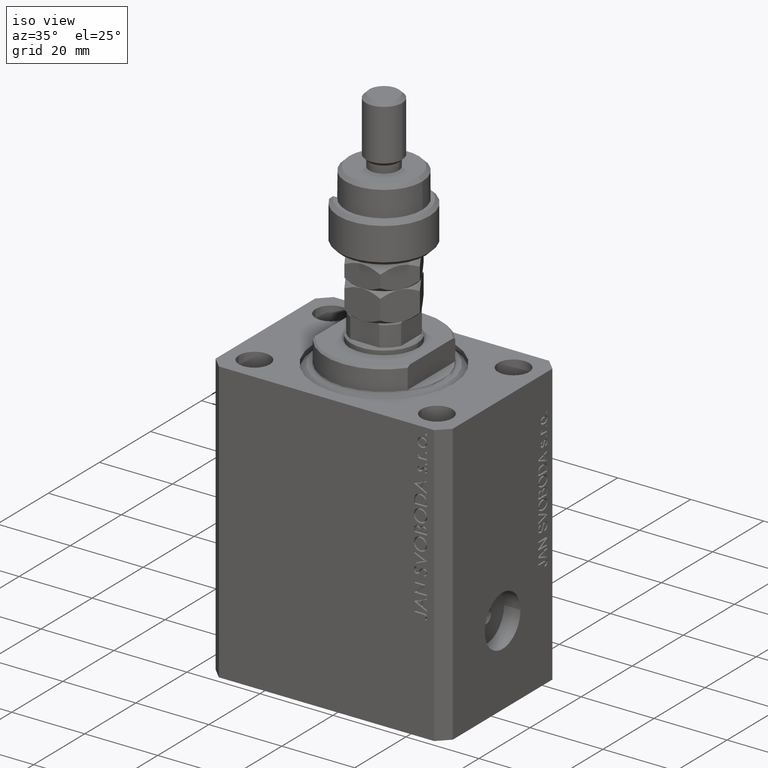
[diagram: clean part render]
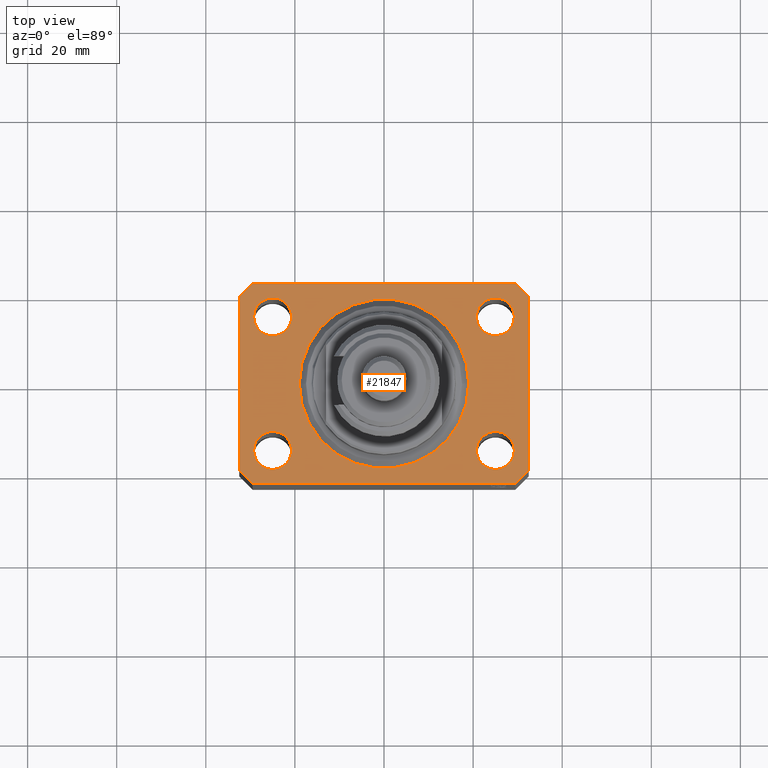
[diagram: tour spotlight — one face highlighted and labeled with its STEP entity id]
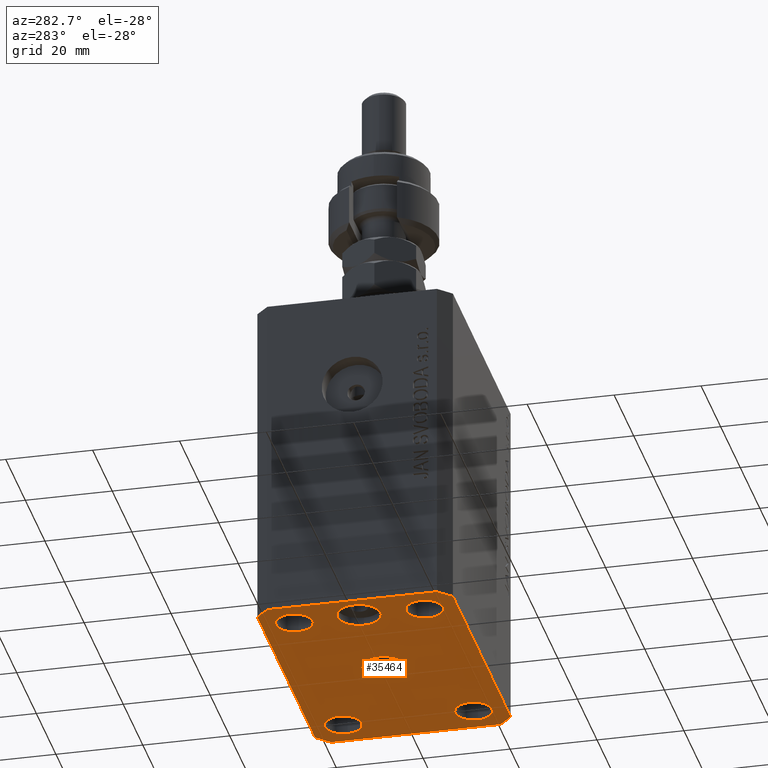
[diagram: tour spotlight — one face highlighted and labeled with its STEP entity id]
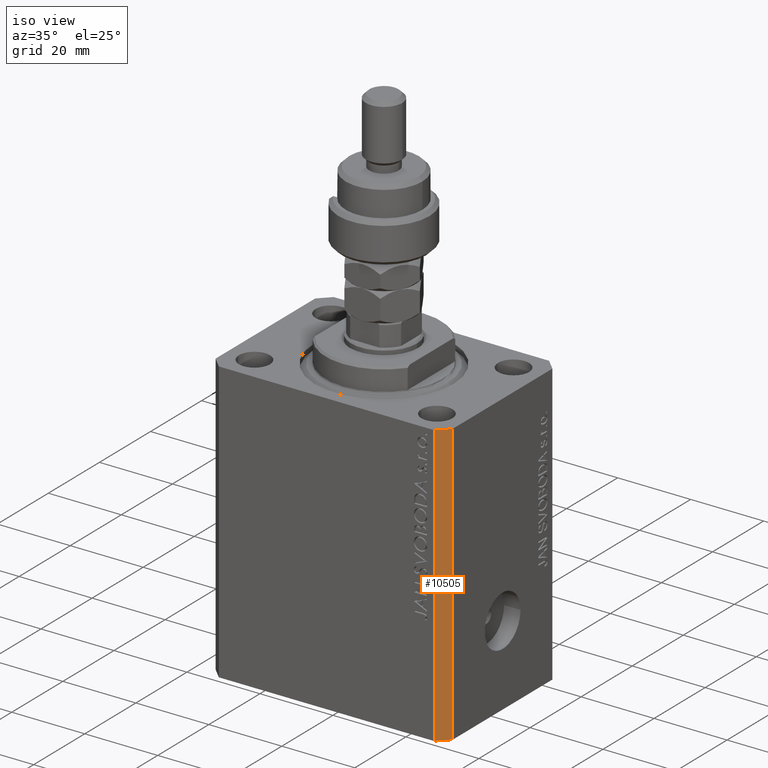
[diagram: tour spotlight — one face highlighted and labeled with its STEP entity id]
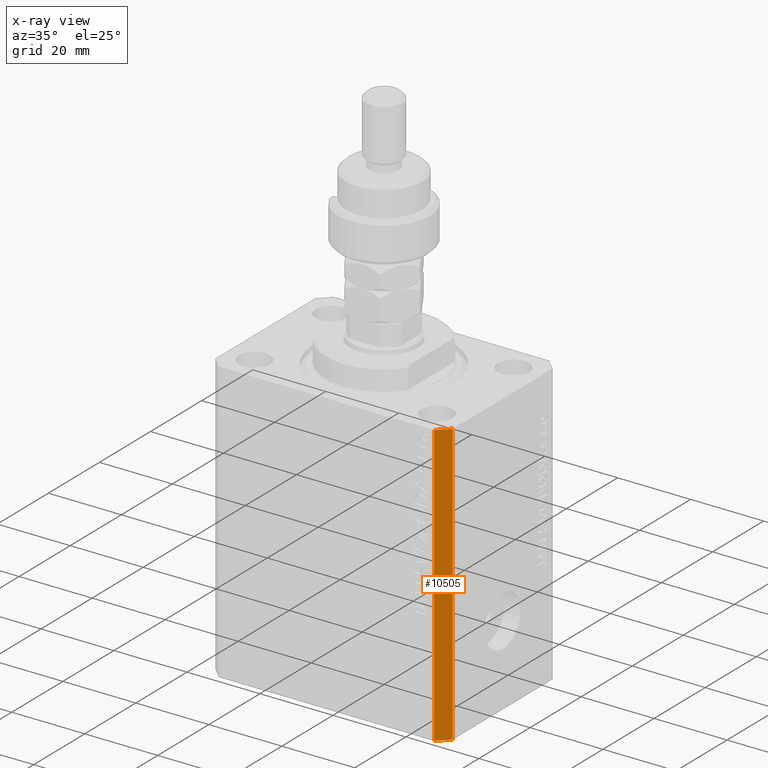
[diagram: x-ray of the same camera — body ghosted, this tour face saturated]
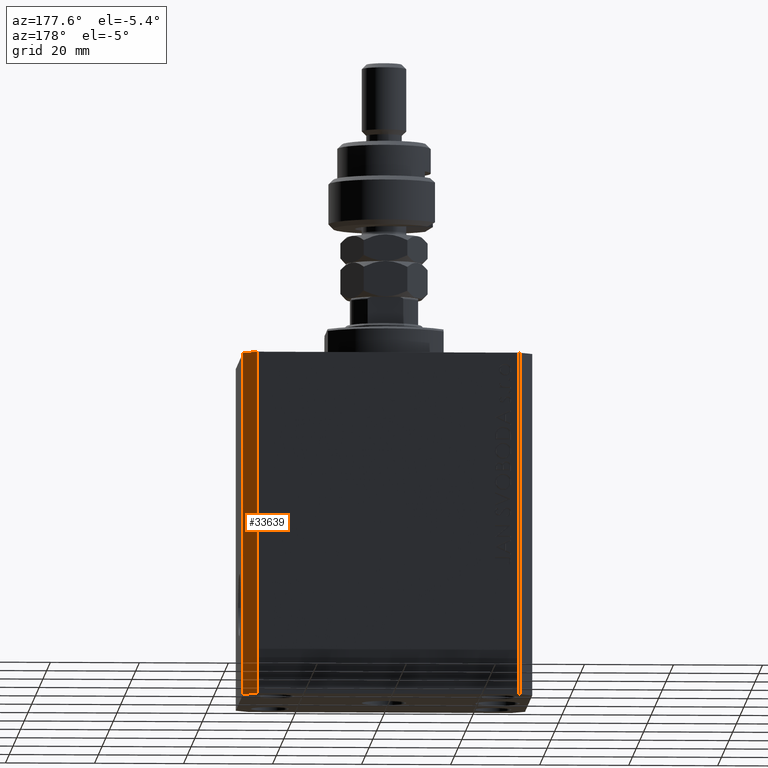
[diagram: tour spotlight — one face highlighted and labeled with its STEP entity id]
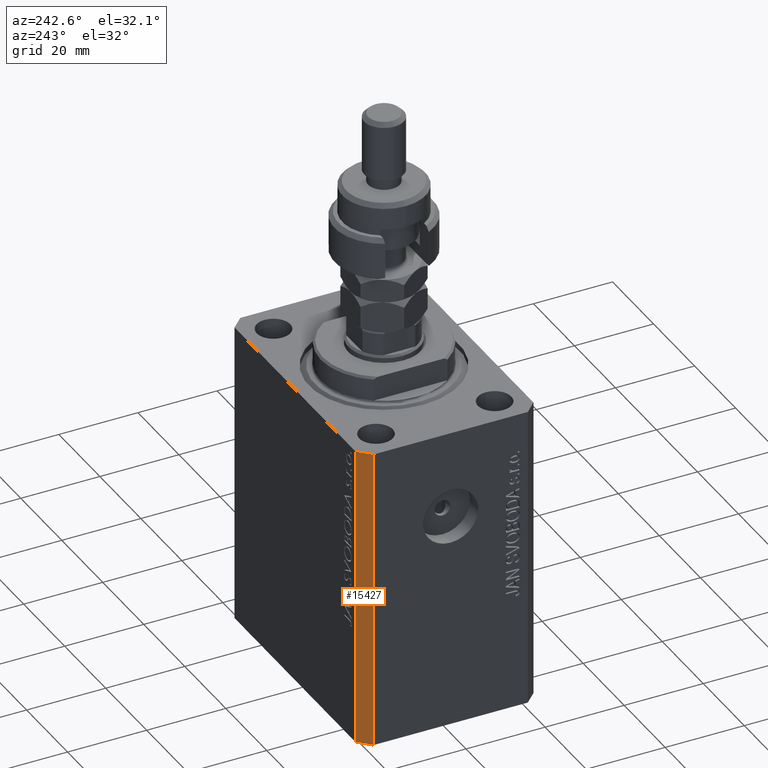
[diagram: tour spotlight — one face highlighted and labeled with its STEP entity id]
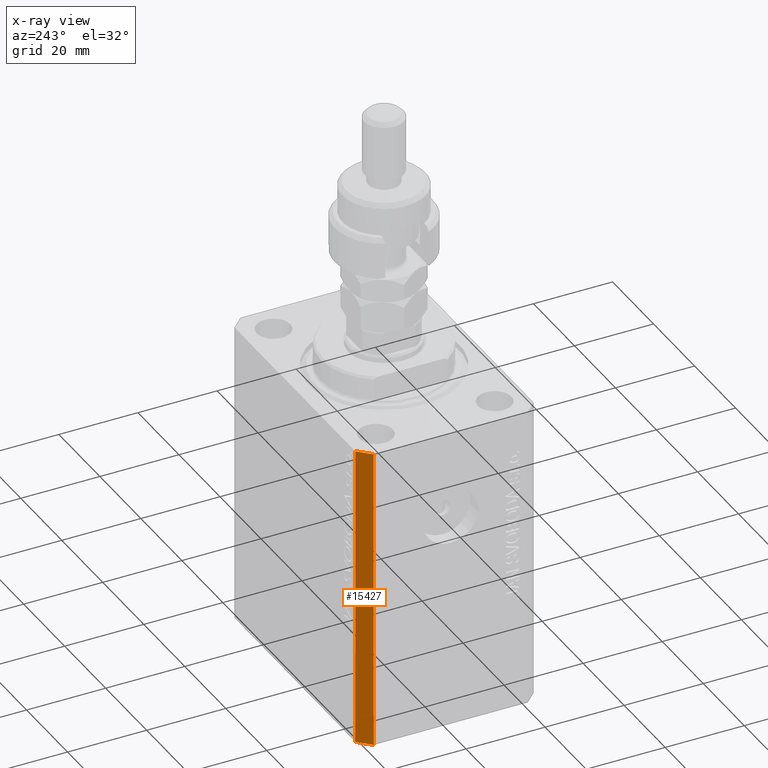
[diagram: x-ray of the same camera — body ghosted, this tour face saturated]
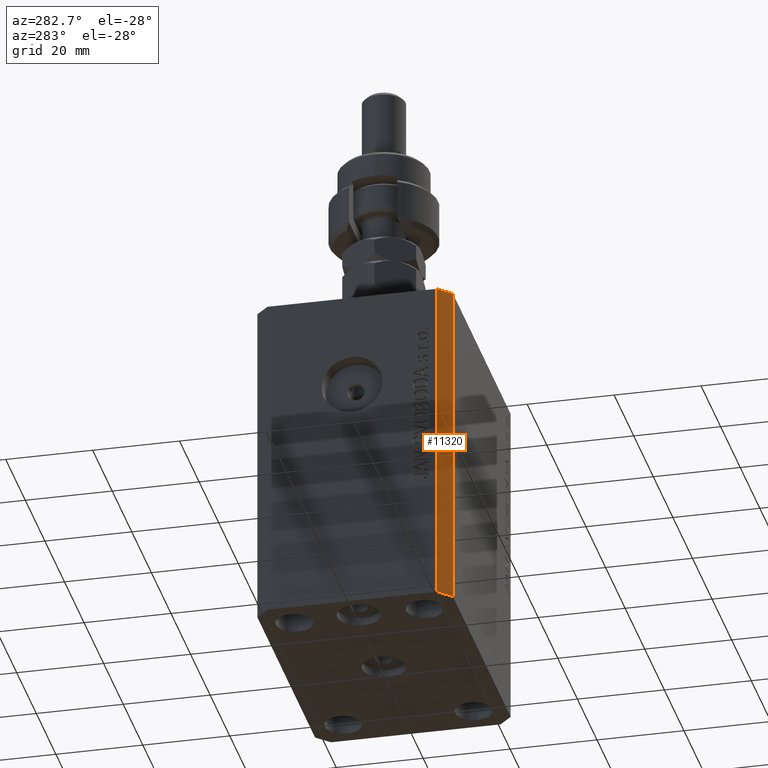
[diagram: tour spotlight — one face highlighted and labeled with its STEP entity id]
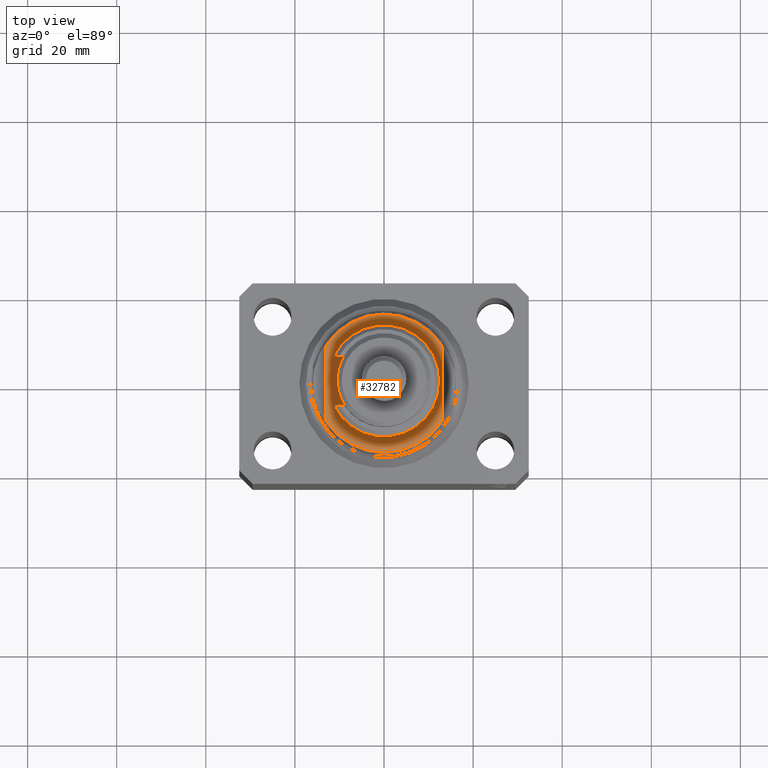
[diagram: tour spotlight — one face highlighted and labeled with its STEP entity id]
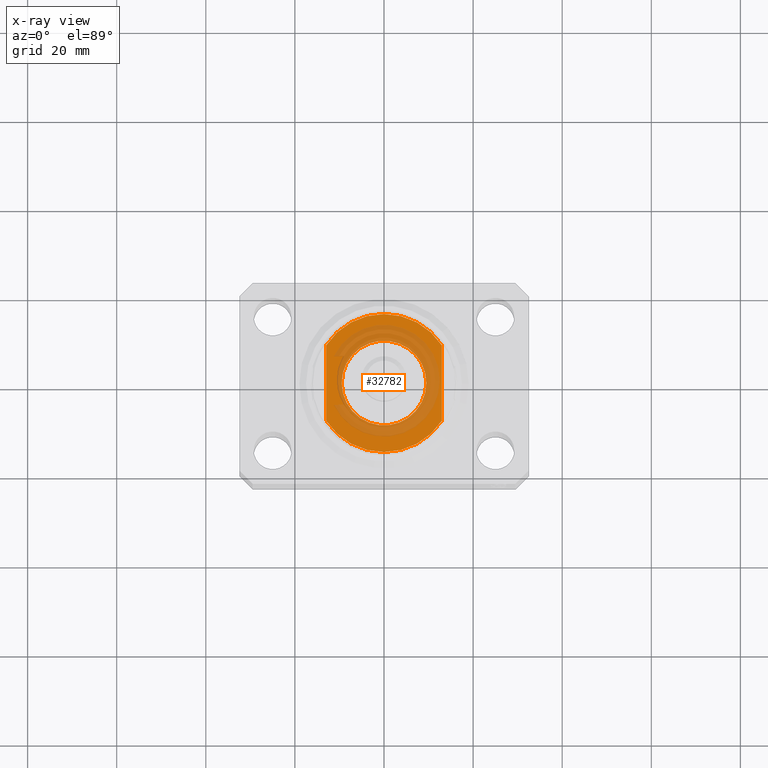
[diagram: x-ray of the same camera — body ghosted, this tour face saturated]
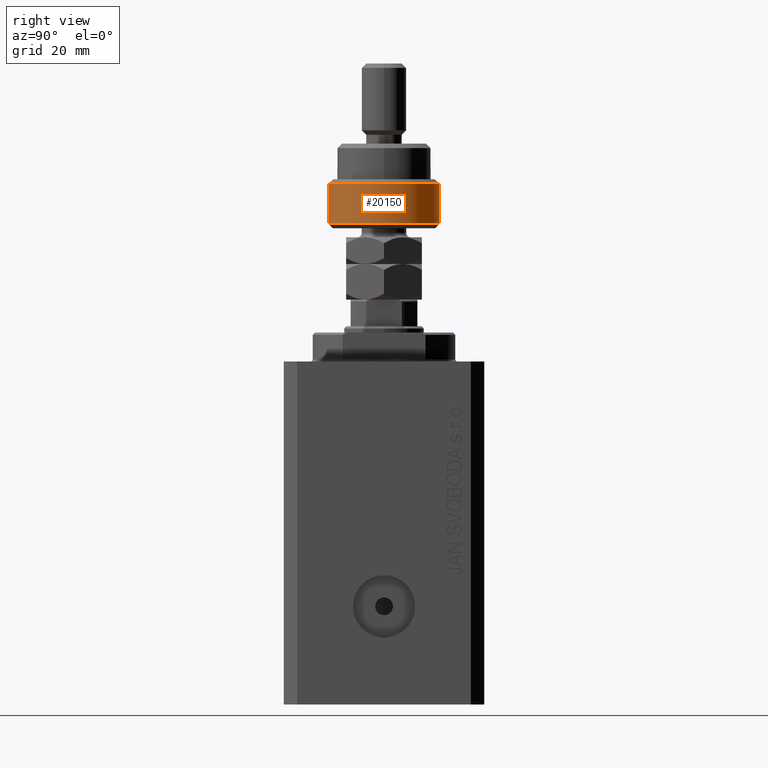
[diagram: tour spotlight — one face highlighted and labeled with its STEP entity id]
A machine part: a face-by-face anatomy tour. The part has 957 B-rep faces; the first image is the clean iso view, then the 8 largest visible faces are spotlighted one at a time (largest first), each with its STEP entity span.

Face 1 — top view, entity #21847. In plain terms, the highlighted planar face has unit normal (0, 0, 1).
Definition (entity closure, byte-faithful):
#110 = DIRECTION ( 'NONE',  ( 0.000000000000000000, 0.000000000000000000, 1.000000000000000000 ) ) ;
#600 = CARTESIAN_POINT ( 'NONE',  ( -24.99999999999999289, -15.00000000000000355, 0.000000000000000000 ) ) ;
#806 = CARTESIAN_POINT ( 'NONE',  ( 19.00000000000000000, 0.000000000000000000, 0.000000000000000000 ) ) ;
#822 = CARTESIAN_POINT ( 'NONE',  ( -29.49999999999650413, -22.49999999999949907, 0.000000000000000000 ) ) ;
#1259 = ORIENTED_EDGE ( 'NONE', *, *, #39170, .F. ) ;
#1376 = EDGE_CURVE ( 'NONE', #36806, #43090, #2805, .T. ) ;
#1683 = CARTESIAN_POINT ( 'NONE',  ( -24.99999999999999289, -15.00000000000000355, 0.000000000000000000 ) ) ;
#1937 = VERTEX_POINT ( 'NONE', #40263 ) ;
#2790 = EDGE_CURVE ( 'NONE', #1937, #25094, #7047, .T. ) ;
#2805 = LINE ( 'NONE', #6414, #12857 ) ;
#2811 = CARTESIAN_POINT ( 'NONE',  ( -19.00000000000000000, 2.326828918379970970E-15, 0.000000000000000000 ) ) ;
#3057 = CIRCLE ( 'NONE', #31469, 4.250000000040370374 ) ;
#3074 = LINE ( 'NONE', #42954, #4219 ) ;
#3105 = CARTESIAN_POINT ( 'NONE',  ( 29.49999999999650413, -22.49999999999949196, 0.000000000000000000 ) ) ;
#3336 = AXIS2_PLACEMENT_3D ( 'NONE', #17328, #21641, #25247 ) ;
#3455 = ORIENTED_EDGE ( 'NONE', *, *, #42697, .F. ) ;
#4219 = VECTOR ( 'NONE', #24728, 1000.000000000000000 ) ;
#4383 = CARTESIAN_POINT ( 'NONE',  ( 20.75000000004271072, 14.99999999999999289, 0.000000000000000000 ) ) ;
#4765 = CIRCLE ( 'NONE', #31640, 19.00000000000000000 ) ;
#5170 = EDGE_CURVE ( 'NONE', #28825, #44074, #6717, .T. ) ;
#6203 = FACE_BOUND ( 'NONE', #25554, .T. ) ;
#6325 = LINE ( 'NONE', #12419, #7259 ) ;
#6414 = CARTESIAN_POINT ( 'NONE',  ( -29.49999999999650413, 22.49999999999949907, 0.000000000000000000 ) ) ;
#6717 = LINE ( 'NONE', #3105, #46993 ) ;
#7047 = CIRCLE ( 'NONE', #14721, 4.250000000021375790 ) ;
#7103 = DIRECTION ( 'NONE',  ( 1.000000000000000000, 0.000000000000000000, 0.000000000000000000 ) ) ;
#7117 = VERTEX_POINT ( 'NONE', #20446 ) ;
#7147 = FACE_BOUND ( 'NONE', #35720, .T. ) ;
#7198 = EDGE_CURVE ( 'NONE', #12489, #37787, #14071, .T. ) ;
#7249 = AXIS2_PLACEMENT_3D ( 'NONE', #22758, #8095, #23001 ) ;
#7259 = VECTOR ( 'NONE', #13294, 1000.000000000000000 ) ;
#8095 = DIRECTION ( 'NONE',  ( 0.000000000000000000, 0.000000000000000000, 1.000000000000000000 ) ) ;
#8680 = DIRECTION ( 'NONE',  ( -1.000000000000000000, -3.528251137580330676E-16, 0.000000000000000000 ) ) ;
#8756 = LINE ( 'NONE', #822, #23404 ) ;
#8855 = VERTEX_POINT ( 'NONE', #32902 ) ;
#9298 = EDGE_CURVE ( 'NONE', #7117, #45449, #38685, .T. ) ;
#10199 = ORIENTED_EDGE ( 'NONE', *, *, #9298, .F. ) ;
#10665 = ORIENTED_EDGE ( 'NONE', *, *, #18355, .T. ) ;
#10708 = CARTESIAN_POINT ( 'NONE',  ( 0.000000000000000000, 0.000000000000000000, 0.000000000000000000 ) ) ;
#10754 = DIRECTION ( 'NONE',  ( 1.000000000000000000, 0.000000000000000000, -0.000000000000000000 ) ) ;
#11003 = EDGE_CURVE ( 'NONE', #44074, #24312, #3074, .T. ) ;
#11173 = AXIS2_PLACEMENT_3D ( 'NONE', #35978, #28554, #10754 ) ;
#11332 = DIRECTION ( 'NONE',  ( 0.000000000000000000, 0.000000000000000000, 1.000000000000000000 ) ) ;
#11565 = DIRECTION ( 'NONE',  ( 1.000000000000000000, 0.000000000000000000, 0.000000000000000000 ) ) ;
#11962 = EDGE_CURVE ( 'NONE', #24312, #40547, #30045, .T. ) ;
#12149 = EDGE_CURVE ( 'NONE', #8855, #27911, #21823, .T. ) ;
#12419 = CARTESIAN_POINT ( 'NONE',  ( -32.49999999999650413, 19.49999999999949907, 0.000000000000000000 ) ) ;
#12489 = VERTEX_POINT ( 'NONE', #4383 ) ;
#12857 = VECTOR ( 'NONE', #14563, 1000.000000000000114 ) ;
#13294 = DIRECTION ( 'NONE',  ( 0.000000000000000000, -1.000000000000000000, 0.000000000000000000 ) ) ;
#14071 = CIRCLE ( 'NONE', #3336, 4.249999999957291053 ) ;
#14113 = FACE_OUTER_BOUND ( 'NONE', #29534, .T. ) ;
#14508 = ORIENTED_EDGE ( 'NONE', *, *, #36951, .T. ) ;
#14558 = EDGE_CURVE ( 'NONE', #23502, #20947, #32468, .T. ) ;
#14563 = DIRECTION ( 'NONE',  ( -0.7071067811865474617, -0.7071067811865474617, 0.000000000000000000 ) ) ;
#14721 = AXIS2_PLACEMENT_3D ( 'NONE', #35587, #35351, #17102 ) ;
#14776 = DIRECTION ( 'NONE',  ( 1.000000000000000000, 0.000000000000000000, 0.000000000000000000 ) ) ;
#15205 = AXIS2_PLACEMENT_3D ( 'NONE', #28897, #11332, #11565 ) ;
#15264 = DIRECTION ( 'NONE',  ( 1.000000000000000000, 0.000000000000000000, 0.000000000000000000 ) ) ;
#15495 = CARTESIAN_POINT ( 'NONE',  ( 25.00000000000000000, 14.99999999999999289, 0.000000000000000000 ) ) ;
#17102 = DIRECTION ( 'NONE',  ( 1.000000000000000000, 0.000000000000000000, 0.000000000000000000 ) ) ;
#17328 = CARTESIAN_POINT ( 'NONE',  ( 25.00000000000000000, 14.99999999999999289, 0.000000000000000000 ) ) ;
#17480 = DIRECTION ( 'NONE',  ( 1.000000000000000000, 0.000000000000000000, 0.000000000000000000 ) ) ;
#17526 = ORIENTED_EDGE ( 'NONE', *, *, #43688, .F. ) ;
#17773 = DIRECTION ( 'NONE',  ( 0.7071067811865483499, 0.7071067811865466846, 0.000000000000000000 ) ) ;
#18355 = EDGE_CURVE ( 'NONE', #43090, #23502, #6325, .T. ) ;
#19236 = EDGE_CURVE ( 'NONE', #20947, #28825, #8756, .T. ) ;
#19656 = CARTESIAN_POINT ( 'NONE',  ( -29.49999999999650413, -22.49999999999949907, 0.000000000000000000 ) ) ;
#19734 = LINE ( 'NONE', #41345, #36795 ) ;
#19737 = CARTESIAN_POINT ( 'NONE',  ( 29.49999999999650413, -22.49999999999949196, 0.000000000000000000 ) ) ;
#19812 = DIRECTION ( 'NONE',  ( 1.000000000000000000, 1.176083712526788232E-16, 0.000000000000000000 ) ) ;
#20446 = CARTESIAN_POINT ( 'NONE',  ( 29.24999999997631051, -15.00000000000000355, 0.000000000000000000 ) ) ;
#20715 = CARTESIAN_POINT ( 'NONE',  ( 0.000000000000000000, 0.000000000000000000, 0.000000000000000000 ) ) ;
#20843 = EDGE_LOOP ( 'NONE', ( #3455, #45012 ) ) ;
#20883 = ORIENTED_EDGE ( 'NONE', *, *, #11962, .T. ) ;
#20947 = VERTEX_POINT ( 'NONE', #19656 ) ;
#21254 = EDGE_CURVE ( 'NONE', #46845, #40782, #21915, .T. ) ;
#21589 = ORIENTED_EDGE ( 'NONE', *, *, #19236, .T. ) ;
#21641 = DIRECTION ( 'NONE',  ( 0.000000000000000000, 0.000000000000000000, 1.000000000000000000 ) ) ;
#21823 = CIRCLE ( 'NONE', #44816, 4.250000000040370374 ) ;
#21847 = ADVANCED_FACE ( 'NONE', ( #46552, #6203, #46785, #47255, #7147, #14113 ), #29026, .T. ) ;
#21906 = CARTESIAN_POINT ( 'NONE',  ( -32.49999999999650413, -19.49999999999949907, 0.000000000000000000 ) ) ;
#21915 = CIRCLE ( 'NONE', #32644, 19.00000000000000000 ) ;
#22758 = CARTESIAN_POINT ( 'NONE',  ( 24.99999999999999289, -15.00000000000000355, 0.000000000000000000 ) ) ;
#23001 = DIRECTION ( 'NONE',  ( 1.000000000000000000, 0.000000000000000000, 0.000000000000000000 ) ) ;
#23371 = VECTOR ( 'NONE', #29354, 1000.000000000000114 ) ;
#23404 = VECTOR ( 'NONE', #19812, 1000.000000000000000 ) ;
#23502 = VERTEX_POINT ( 'NONE', #25729 ) ;
#23998 = CIRCLE ( 'NONE', #28599, 4.250000000021375790 ) ;
#24153 = ORIENTED_EDGE ( 'NONE', *, *, #36250, .F. ) ;
#24312 = VERTEX_POINT ( 'NONE', #41700 ) ;
#24568 = DIRECTION ( 'NONE',  ( 0.000000000000000000, 0.000000000000000000, 1.000000000000000000 ) ) ;
#24728 = DIRECTION ( 'NONE',  ( 1.334402673828349134E-14, 1.000000000000000000, 0.000000000000000000 ) ) ;
#24771 = EDGE_LOOP ( 'NONE', ( #10199, #33393 ) ) ;
#25094 = VERTEX_POINT ( 'NONE', #25186 ) ;
#25186 = CARTESIAN_POINT ( 'NONE',  ( -29.25000000002137668, 14.99999999999999645, 0.000000000000000000 ) ) ;
#25247 = DIRECTION ( 'NONE',  ( 1.000000000000000000, 0.000000000000000000, 0.000000000000000000 ) ) ;
#25554 = EDGE_LOOP ( 'NONE', ( #24153, #47432 ) ) ;
#25729 = CARTESIAN_POINT ( 'NONE',  ( -32.49999999999650413, -19.49999999999949907, 0.000000000000000000 ) ) ;
#27911 = VERTEX_POINT ( 'NONE', #41103 ) ;
#28554 = DIRECTION ( 'NONE',  ( 0.000000000000000000, 0.000000000000000000, 1.000000000000000000 ) ) ;
#28599 = AXIS2_PLACEMENT_3D ( 'NONE', #46301, #42693, #17480 ) ;
#28825 = VERTEX_POINT ( 'NONE', #19737 ) ;
#28897 = CARTESIAN_POINT ( 'NONE',  ( 24.99999999999999289, -15.00000000000000355, 0.000000000000000000 ) ) ;
#29026 = PLANE ( 'NONE',  #11173 ) ;
#29354 = DIRECTION ( 'NONE',  ( 0.7071067811865474617, -0.7071067811865474617, 0.000000000000000000 ) ) ;
#29534 = EDGE_LOOP ( 'NONE', ( #14508, #31276, #10665, #34813, #21589, #36761, #45860, #20883 ) ) ;
#30045 = LINE ( 'NONE', #33876, #46359 ) ;
#30202 = CARTESIAN_POINT ( 'NONE',  ( 29.49999999999707967, 22.49999999999952038, 0.000000000000000000 ) ) ;
#30244 = EDGE_LOOP ( 'NONE', ( #1259, #46008 ) ) ;
#31276 = ORIENTED_EDGE ( 'NONE', *, *, #1376, .T. ) ;
#31469 = AXIS2_PLACEMENT_3D ( 'NONE', #1683, #38438, #46366 ) ;
#31640 = AXIS2_PLACEMENT_3D ( 'NONE', #10708, #40000, #7103 ) ;
#32273 = EDGE_CURVE ( 'NONE', #45449, #7117, #35922, .T. ) ;
#32468 = LINE ( 'NONE', #21906, #23371 ) ;
#32644 = AXIS2_PLACEMENT_3D ( 'NONE', #20715, #24568, #38954 ) ;
#32774 = CARTESIAN_POINT ( 'NONE',  ( 32.49999999999651124, -19.49999999999949196, 0.000000000000000000 ) ) ;
#32902 = CARTESIAN_POINT ( 'NONE',  ( -29.25000000004036593, -15.00000000000000355, 0.000000000000000000 ) ) ;
#33393 = ORIENTED_EDGE ( 'NONE', *, *, #32273, .F. ) ;
#33876 = CARTESIAN_POINT ( 'NONE',  ( 32.49999999999702993, 19.49999999999945999, 0.000000000000000000 ) ) ;
#34813 = ORIENTED_EDGE ( 'NONE', *, *, #14558, .T. ) ;
#35351 = DIRECTION ( 'NONE',  ( 0.000000000000000000, 0.000000000000000000, 1.000000000000000000 ) ) ;
#35587 = CARTESIAN_POINT ( 'NONE',  ( -25.00000000000000000, 14.99999999999999645, 0.000000000000000000 ) ) ;
#35720 = EDGE_LOOP ( 'NONE', ( #45040, #17526 ) ) ;
#35922 = CIRCLE ( 'NONE', #15205, 4.249999999976314058 ) ;
#35978 = CARTESIAN_POINT ( 'NONE',  ( 0.000000000000000000, 0.000000000000000000, 0.000000000000000000 ) ) ;
#36250 = EDGE_CURVE ( 'NONE', #27911, #8855, #3057, .T. ) ;
#36761 = ORIENTED_EDGE ( 'NONE', *, *, #5170, .T. ) ;
#36795 = VECTOR ( 'NONE', #8680, 1000.000000000000000 ) ;
#36806 = VERTEX_POINT ( 'NONE', #42170 ) ;
#36951 = EDGE_CURVE ( 'NONE', #40547, #36806, #19734, .T. ) ;
#37114 = DIRECTION ( 'NONE',  ( 0.000000000000000000, 0.000000000000000000, 1.000000000000000000 ) ) ;
#37787 = VERTEX_POINT ( 'NONE', #46321 ) ;
#38438 = DIRECTION ( 'NONE',  ( 0.000000000000000000, 0.000000000000000000, 1.000000000000000000 ) ) ;
#38685 = CIRCLE ( 'NONE', #7249, 4.249999999976314058 ) ;
#38954 = DIRECTION ( 'NONE',  ( 1.000000000000000000, 0.000000000000000000, 0.000000000000000000 ) ) ;
#39170 = EDGE_CURVE ( 'NONE', #37787, #12489, #41463, .T. ) ;
#40000 = DIRECTION ( 'NONE',  ( 0.000000000000000000, 0.000000000000000000, 1.000000000000000000 ) ) ;
#40263 = CARTESIAN_POINT ( 'NONE',  ( -20.74999999997862687, 14.99999999999999645, 0.000000000000000000 ) ) ;
#40547 = VERTEX_POINT ( 'NONE', #30202 ) ;
#40782 = VERTEX_POINT ( 'NONE', #806 ) ;
#41103 = CARTESIAN_POINT ( 'NONE',  ( -20.74999999995962341, -15.00000000000000355, 0.000000000000000000 ) ) ;
#41345 = CARTESIAN_POINT ( 'NONE',  ( 29.49999999999707967, 22.49999999999952038, 0.000000000000000000 ) ) ;
#41463 = CIRCLE ( 'NONE', #43781, 4.249999999957291053 ) ;
#41700 = CARTESIAN_POINT ( 'NONE',  ( 32.49999999999702993, 19.49999999999945999, 0.000000000000000000 ) ) ;
#42170 = CARTESIAN_POINT ( 'NONE',  ( -29.49999999999650413, 22.49999999999949907, 0.000000000000000000 ) ) ;
#42693 = DIRECTION ( 'NONE',  ( 0.000000000000000000, 0.000000000000000000, 1.000000000000000000 ) ) ;
#42697 = EDGE_CURVE ( 'NONE', #40782, #46845, #4765, .T. ) ;
#42954 = CARTESIAN_POINT ( 'NONE',  ( 32.49999999999651124, -19.49999999999949196, 0.000000000000000000 ) ) ;
#43090 = VERTEX_POINT ( 'NONE', #44565 ) ;
#43688 = EDGE_CURVE ( 'NONE', #25094, #1937, #23998, .T. ) ;
#43781 = AXIS2_PLACEMENT_3D ( 'NONE', #15495, #110, #14776 ) ;
#44074 = VERTEX_POINT ( 'NONE', #32774 ) ;
#44457 = CARTESIAN_POINT ( 'NONE',  ( 20.75000000002367884, -15.00000000000000355, 0.000000000000000000 ) ) ;
#44565 = CARTESIAN_POINT ( 'NONE',  ( -32.49999999999650413, 19.49999999999949907, 0.000000000000000000 ) ) ;
#44674 = DIRECTION ( 'NONE',  ( -0.7071067811865344721, 0.7071067811865606734, 0.000000000000000000 ) ) ;
#44816 = AXIS2_PLACEMENT_3D ( 'NONE', #600, #37114, #15264 ) ;
#45012 = ORIENTED_EDGE ( 'NONE', *, *, #21254, .F. ) ;
#45040 = ORIENTED_EDGE ( 'NONE', *, *, #2790, .F. ) ;
#45449 = VERTEX_POINT ( 'NONE', #44457 ) ;
#45860 = ORIENTED_EDGE ( 'NONE', *, *, #11003, .T. ) ;
#46008 = ORIENTED_EDGE ( 'NONE', *, *, #7198, .F. ) ;
#46301 = CARTESIAN_POINT ( 'NONE',  ( -25.00000000000000000, 14.99999999999999645, 0.000000000000000000 ) ) ;
#46321 = CARTESIAN_POINT ( 'NONE',  ( 29.24999999995729283, 14.99999999999999289, 0.000000000000000000 ) ) ;
#46359 = VECTOR ( 'NONE', #44674, 1000.000000000000000 ) ;
#46366 = DIRECTION ( 'NONE',  ( 1.000000000000000000, 0.000000000000000000, 0.000000000000000000 ) ) ;
#46552 = FACE_BOUND ( 'NONE', #20843, .T. ) ;
#46785 = FACE_BOUND ( 'NONE', #24771, .T. ) ;
#46845 = VERTEX_POINT ( 'NONE', #2811 ) ;
#46993 = VECTOR ( 'NONE', #17773, 1000.000000000000000 ) ;
#47255 = FACE_BOUND ( 'NONE', #30244, .T. ) ;
#47432 = ORIENTED_EDGE ( 'NONE', *, *, #12149, .F. ) ;

Face 2 — auxiliary view, entity #35464. In plain terms, the highlighted planar face has unit normal (0, 0, 1).
Definition (entity closure, byte-faithful):
#1013 = VERTEX_POINT ( 'NONE', #47288 ) ;
#1254 = CARTESIAN_POINT ( 'NONE',  ( -32.49999999999650413, 19.49999999999949907, -77.00000000000000000 ) ) ;
#1767 = ORIENTED_EDGE ( 'NONE', *, *, #33319, .F. ) ;
#2078 = ORIENTED_EDGE ( 'NONE', *, *, #14077, .F. ) ;
#2183 = CARTESIAN_POINT ( 'NONE',  ( -20.74999999995962341, -15.00000000000000355, -77.00000000000000000 ) ) ;
#2307 = CIRCLE ( 'NONE', #12303, 4.250000000040370374 ) ;
#2700 = VECTOR ( 'NONE', #18390, 1000.000000000000114 ) ;
#3228 = CIRCLE ( 'NONE', #40052, 5.000000000000000000 ) ;
#3335 = LINE ( 'NONE', #28356, #44542 ) ;
#3488 = EDGE_CURVE ( 'NONE', #20303, #43015, #36179, .T. ) ;
#3507 = VERTEX_POINT ( 'NONE', #14324 ) ;
#3515 = AXIS2_PLACEMENT_3D ( 'NONE', #11170, #25828, #21992 ) ;
#3571 = DIRECTION ( 'NONE',  ( -0.7071067811865474617, -0.7071067811865474617, 0.000000000000000000 ) ) ;
#3732 = LINE ( 'NONE', #11657, #2700 ) ;
#3913 = DIRECTION ( 'NONE',  ( 1.000000000000000000, 0.000000000000000000, 0.000000000000000000 ) ) ;
#3953 = DIRECTION ( 'NONE',  ( -1.000000000000000000, 0.000000000000000000, 0.000000000000000000 ) ) ;
#4691 = CARTESIAN_POINT ( 'NONE',  ( 32.49999999999702993, 19.49999999999945999, -77.00000000000000000 ) ) ;
#4935 = DIRECTION ( 'NONE',  ( -0.7071067811865344721, 0.7071067811865606734, 0.000000000000000000 ) ) ;
#5055 = CIRCLE ( 'NONE', #3515, 4.999999999996659561 ) ;
#5568 = ORIENTED_EDGE ( 'NONE', *, *, #16624, .F. ) ;
#6084 = CARTESIAN_POINT ( 'NONE',  ( 20.75000000004271072, 14.99999999999999289, -77.00000000000000000 ) ) ;
#6484 = CARTESIAN_POINT ( 'NONE',  ( 0.000000000000000000, 0.000000000000000000, -77.00000000000000000 ) ) ;
#6496 = CIRCLE ( 'NONE', #12644, 4.249999999957291053 ) ;
#6798 = CIRCLE ( 'NONE', #35954, 4.249999999957291053 ) ;
#6979 = DIRECTION ( 'NONE',  ( 1.000000000000000000, 0.000000000000000000, 0.000000000000000000 ) ) ;
#7506 = EDGE_CURVE ( 'NONE', #46758, #14204, #43987, .T. ) ;
#8192 = LINE ( 'NONE', #15399, #21782 ) ;
#8281 = EDGE_CURVE ( 'NONE', #39215, #8420, #14102, .T. ) ;
#8420 = VERTEX_POINT ( 'NONE', #17605 ) ;
#8425 = LINE ( 'NONE', #29591, #19006 ) ;
#8850 = DIRECTION ( 'NONE',  ( 1.000000000000000000, 0.000000000000000000, 0.000000000000000000 ) ) ;
#9038 = EDGE_CURVE ( 'NONE', #18694, #37211, #45832, .T. ) ;
#9478 = EDGE_LOOP ( 'NONE', ( #36575, #47149 ) ) ;
#9648 = EDGE_CURVE ( 'NONE', #11982, #40895, #6496, .T. ) ;
#9846 = ORIENTED_EDGE ( 'NONE', *, *, #22212, .F. ) ;
#9860 = AXIS2_PLACEMENT_3D ( 'NONE', #27664, #39160, #42291 ) ;
#10090 = FACE_BOUND ( 'NONE', #25622, .T. ) ;
#10820 = CIRCLE ( 'NONE', #37662, 4.249999999976314058 ) ;
#11116 = AXIS2_PLACEMENT_3D ( 'NONE', #43551, #36595, #3913 ) ;
#11170 = CARTESIAN_POINT ( 'NONE',  ( -25.50000000000000000, 0.000000000000000000, -77.00000000000000000 ) ) ;
#11657 = CARTESIAN_POINT ( 'NONE',  ( -32.49999999999650413, -19.49999999999949907, -77.00000000000000000 ) ) ;
#11982 = VERTEX_POINT ( 'NONE', #40594 ) ;
#12020 = ORIENTED_EDGE ( 'NONE', *, *, #31604, .F. ) ;
#12193 = CARTESIAN_POINT ( 'NONE',  ( 0.000000000000000000, 0.000000000000000000, -77.00000000000000000 ) ) ;
#12303 = AXIS2_PLACEMENT_3D ( 'NONE', #39387, #24768, #36267 ) ;
#12406 = EDGE_CURVE ( 'NONE', #12647, #21776, #37958, .T. ) ;
#12453 = CARTESIAN_POINT ( 'NONE',  ( 5.000000000000000000, 6.123233995736765296E-16, -77.00000000000000000 ) ) ;
#12644 = AXIS2_PLACEMENT_3D ( 'NONE', #15727, #40459, #30386 ) ;
#12647 = VERTEX_POINT ( 'NONE', #29586 ) ;
#13083 = DIRECTION ( 'NONE',  ( -0.000000000000000000, -0.000000000000000000, -1.000000000000000000 ) ) ;
#13427 = CARTESIAN_POINT ( 'NONE',  ( 29.49999999999707967, 22.49999999999952038, -77.00000000000000000 ) ) ;
#14077 = EDGE_CURVE ( 'NONE', #45781, #44088, #36374, .T. ) ;
#14102 = CIRCLE ( 'NONE', #47087, 4.250000000040370374 ) ;
#14204 = VERTEX_POINT ( 'NONE', #21260 ) ;
#14264 = EDGE_LOOP ( 'NONE', ( #46892, #22963 ) ) ;
#14324 = CARTESIAN_POINT ( 'NONE',  ( -32.49999999999650413, -19.49999999999949907, -77.00000000000000000 ) ) ;
#15181 = DIRECTION ( 'NONE',  ( 1.000000000000000000, 0.000000000000000000, 0.000000000000000000 ) ) ;
#15250 = DIRECTION ( 'NONE',  ( 0.000000000000000000, 0.000000000000000000, -1.000000000000000000 ) ) ;
#15399 = CARTESIAN_POINT ( 'NONE',  ( 32.49999999999651124, -19.49999999999949196, -77.00000000000000000 ) ) ;
#15514 = ORIENTED_EDGE ( 'NONE', *, *, #46504, .F. ) ;
#15657 = VECTOR ( 'NONE', #42466, 1000.000000000000000 ) ;
#15701 = VERTEX_POINT ( 'NONE', #23042 ) ;
#15727 = CARTESIAN_POINT ( 'NONE',  ( 25.00000000000000000, 14.99999999999999289, -77.00000000000000000 ) ) ;
#15848 = CARTESIAN_POINT ( 'NONE',  ( 32.49999999999702993, 19.49999999999945999, -77.00000000000000000 ) ) ;
#15888 = CARTESIAN_POINT ( 'NONE',  ( -32.49999999999650413, 19.49999999999949907, -77.00000000000000000 ) ) ;
#16159 = DIRECTION ( 'NONE',  ( 0.000000000000000000, -1.000000000000000000, 0.000000000000000000 ) ) ;
#16386 = LINE ( 'NONE', #1254, #33068 ) ;
#16605 = VERTEX_POINT ( 'NONE', #15888 ) ;
#16624 = EDGE_CURVE ( 'NONE', #43015, #33580, #8192, .T. ) ;
#17011 = DIRECTION ( 'NONE',  ( -0.000000000000000000, -0.000000000000000000, -1.000000000000000000 ) ) ;
#17307 = DIRECTION ( 'NONE',  ( 1.000000000000000000, 0.000000000000000000, -0.000000000000000000 ) ) ;
#17539 = FACE_BOUND ( 'NONE', #14264, .T. ) ;
#17605 = CARTESIAN_POINT ( 'NONE',  ( -29.25000000004036593, -15.00000000000000355, -77.00000000000000000 ) ) ;
#17689 = ORIENTED_EDGE ( 'NONE', *, *, #45641, .F. ) ;
#17819 = VECTOR ( 'NONE', #47466, 1000.000000000000000 ) ;
#18019 = CARTESIAN_POINT ( 'NONE',  ( -29.49999999999650413, 22.49999999999949907, -77.00000000000000000 ) ) ;
#18105 = CARTESIAN_POINT ( 'NONE',  ( 29.49999999999650413, -22.49999999999949196, -77.00000000000000000 ) ) ;
#18168 = ORIENTED_EDGE ( 'NONE', *, *, #9038, .F. ) ;
#18390 = DIRECTION ( 'NONE',  ( 0.7071067811865474617, -0.7071067811865474617, 0.000000000000000000 ) ) ;
#18694 = VERTEX_POINT ( 'NONE', #13427 ) ;
#18779 = CARTESIAN_POINT ( 'NONE',  ( 25.00000000000000000, 14.99999999999999289, -77.00000000000000000 ) ) ;
#19006 = VECTOR ( 'NONE', #40371, 1000.000000000000000 ) ;
#19086 = ORIENTED_EDGE ( 'NONE', *, *, #40409, .F. ) ;
#19089 = CARTESIAN_POINT ( 'NONE',  ( 0.000000000000000000, 0.000000000000000000, -77.00000000000000000 ) ) ;
#19968 = EDGE_CURVE ( 'NONE', #3507, #25781, #3732, .T. ) ;
#20120 = CARTESIAN_POINT ( 'NONE',  ( 20.75000000002367884, -15.00000000000000355, -77.00000000000000000 ) ) ;
#20303 = VERTEX_POINT ( 'NONE', #18105 ) ;
#20382 = CARTESIAN_POINT ( 'NONE',  ( 29.49999999999707967, 22.49999999999952038, -77.00000000000000000 ) ) ;
#20428 = CIRCLE ( 'NONE', #37312, 4.250000000021375790 ) ;
#21260 = CARTESIAN_POINT ( 'NONE',  ( -5.000000000000000000, 0.000000000000000000, -77.00000000000000000 ) ) ;
#21385 = FACE_OUTER_BOUND ( 'NONE', #32345, .T. ) ;
#21456 = ORIENTED_EDGE ( 'NONE', *, *, #12406, .F. ) ;
#21776 = VERTEX_POINT ( 'NONE', #42464 ) ;
#21782 = VECTOR ( 'NONE', #23106, 1000.000000000000000 ) ;
#21992 = DIRECTION ( 'NONE',  ( -1.000000000000000000, 0.000000000000000000, 0.000000000000000000 ) ) ;
#22212 = EDGE_CURVE ( 'NONE', #15701, #1013, #5055, .T. ) ;
#22963 = ORIENTED_EDGE ( 'NONE', *, *, #7506, .F. ) ;
#23042 = CARTESIAN_POINT ( 'NONE',  ( -30.49999999999665690, 0.000000000000000000, -77.00000000000000000 ) ) ;
#23106 = DIRECTION ( 'NONE',  ( 1.334402673828349134E-14, 1.000000000000000000, 0.000000000000000000 ) ) ;
#23435 = EDGE_CURVE ( 'NONE', #21776, #12647, #20428, .T. ) ;
#24160 = ORIENTED_EDGE ( 'NONE', *, *, #43103, .F. ) ;
#24756 = FACE_BOUND ( 'NONE', #9478, .T. ) ;
#24768 = DIRECTION ( 'NONE',  ( -0.000000000000000000, -0.000000000000000000, -1.000000000000000000 ) ) ;
#25253 = CARTESIAN_POINT ( 'NONE',  ( -25.00000000000000000, 14.99999999999999645, -77.00000000000000000 ) ) ;
#25320 = EDGE_LOOP ( 'NONE', ( #35363, #21456 ) ) ;
#25622 = EDGE_LOOP ( 'NONE', ( #9846, #1767 ) ) ;
#25781 = VERTEX_POINT ( 'NONE', #44235 ) ;
#25814 = CARTESIAN_POINT ( 'NONE',  ( 29.24999999997631051, -15.00000000000000355, -77.00000000000000000 ) ) ;
#25828 = DIRECTION ( 'NONE',  ( 0.000000000000000000, 0.000000000000000000, -1.000000000000000000 ) ) ;
#25964 = ORIENTED_EDGE ( 'NONE', *, *, #3488, .F. ) ;
#26522 = ORIENTED_EDGE ( 'NONE', *, *, #8281, .F. ) ;
#26855 = DIRECTION ( 'NONE',  ( -1.000000000000000000, 0.000000000000000000, 0.000000000000000000 ) ) ;
#27529 = CIRCLE ( 'NONE', #9860, 4.999999999996659561 ) ;
#27664 = CARTESIAN_POINT ( 'NONE',  ( -25.50000000000000000, 0.000000000000000000, -77.00000000000000000 ) ) ;
#28356 = CARTESIAN_POINT ( 'NONE',  ( -29.49999999999650413, 22.49999999999949907, -77.00000000000000000 ) ) ;
#28835 = PLANE ( 'NONE',  #38311 ) ;
#29000 = CARTESIAN_POINT ( 'NONE',  ( 32.49999999999651124, -19.49999999999949196, -77.00000000000000000 ) ) ;
#29586 = CARTESIAN_POINT ( 'NONE',  ( -29.25000000002137668, 14.99999999999999645, -77.00000000000000000 ) ) ;
#29591 = CARTESIAN_POINT ( 'NONE',  ( -29.49999999999650413, -22.49999999999949907, -77.00000000000000000 ) ) ;
#30386 = DIRECTION ( 'NONE',  ( 1.000000000000000000, 0.000000000000000000, 0.000000000000000000 ) ) ;
#30487 = CARTESIAN_POINT ( 'NONE',  ( 24.99999999999999289, -15.00000000000000355, -77.00000000000000000 ) ) ;
#31120 = DIRECTION ( 'NONE',  ( 1.000000000000000000, 0.000000000000000000, 0.000000000000000000 ) ) ;
#31604 = EDGE_CURVE ( 'NONE', #25781, #20303, #8425, .T. ) ;
#32345 = EDGE_LOOP ( 'NONE', ( #18168, #24160, #5568, #25964, #12020, #34799, #19086, #15514 ) ) ;
#32423 = FACE_BOUND ( 'NONE', #34168, .T. ) ;
#32820 = CARTESIAN_POINT ( 'NONE',  ( 29.49999999999650413, -22.49999999999949196, -77.00000000000000000 ) ) ;
#33056 = EDGE_CURVE ( 'NONE', #40895, #11982, #6798, .T. ) ;
#33068 = VECTOR ( 'NONE', #16159, 1000.000000000000000 ) ;
#33174 = ORIENTED_EDGE ( 'NONE', *, *, #45408, .F. ) ;
#33319 = EDGE_CURVE ( 'NONE', #1013, #15701, #27529, .T. ) ;
#33437 = DIRECTION ( 'NONE',  ( -0.000000000000000000, -0.000000000000000000, -1.000000000000000000 ) ) ;
#33580 = VERTEX_POINT ( 'NONE', #15848 ) ;
#33841 = DIRECTION ( 'NONE',  ( 1.000000000000000000, 0.000000000000000000, 0.000000000000000000 ) ) ;
#34168 = EDGE_LOOP ( 'NONE', ( #26522, #17689 ) ) ;
#34249 = LINE ( 'NONE', #4691, #42348 ) ;
#34799 = ORIENTED_EDGE ( 'NONE', *, *, #19968, .F. ) ;
#35019 = CARTESIAN_POINT ( 'NONE',  ( -24.99999999999999289, -15.00000000000000355, -77.00000000000000000 ) ) ;
#35363 = ORIENTED_EDGE ( 'NONE', *, *, #23435, .F. ) ;
#35464 = ADVANCED_FACE ( 'NONE', ( #17539, #10090, #32423, #39614, #24756, #43686, #21385 ), #28835, .F. ) ;
#35579 = DIRECTION ( 'NONE',  ( -0.000000000000000000, -0.000000000000000000, -1.000000000000000000 ) ) ;
#35954 = AXIS2_PLACEMENT_3D ( 'NONE', #18779, #33437, #15181 ) ;
#36020 = DIRECTION ( 'NONE',  ( 0.000000000000000000, 0.000000000000000000, 1.000000000000000000 ) ) ;
#36179 = LINE ( 'NONE', #32820, #17819 ) ;
#36267 = DIRECTION ( 'NONE',  ( 1.000000000000000000, 0.000000000000000000, 0.000000000000000000 ) ) ;
#36374 = CIRCLE ( 'NONE', #40207, 4.249999999976314058 ) ;
#36575 = ORIENTED_EDGE ( 'NONE', *, *, #9648, .F. ) ;
#36595 = DIRECTION ( 'NONE',  ( -0.000000000000000000, -0.000000000000000000, -1.000000000000000000 ) ) ;
#37211 = VERTEX_POINT ( 'NONE', #18019 ) ;
#37312 = AXIS2_PLACEMENT_3D ( 'NONE', #25253, #35579, #6979 ) ;
#37662 = AXIS2_PLACEMENT_3D ( 'NONE', #30487, #37672, #33841 ) ;
#37672 = DIRECTION ( 'NONE',  ( -0.000000000000000000, -0.000000000000000000, -1.000000000000000000 ) ) ;
#37958 = CIRCLE ( 'NONE', #11116, 4.250000000021375790 ) ;
#38311 = AXIS2_PLACEMENT_3D ( 'NONE', #6484, #36020, #17307 ) ;
#39160 = DIRECTION ( 'NONE',  ( 0.000000000000000000, 0.000000000000000000, -1.000000000000000000 ) ) ;
#39215 = VERTEX_POINT ( 'NONE', #2183 ) ;
#39387 = CARTESIAN_POINT ( 'NONE',  ( -24.99999999999999289, -15.00000000000000355, -77.00000000000000000 ) ) ;
#39614 = FACE_BOUND ( 'NONE', #40041, .T. ) ;
#40041 = EDGE_LOOP ( 'NONE', ( #33174, #2078 ) ) ;
#40052 = AXIS2_PLACEMENT_3D ( 'NONE', #12193, #41006, #26855 ) ;
#40207 = AXIS2_PLACEMENT_3D ( 'NONE', #42858, #13083, #31120 ) ;
#40371 = DIRECTION ( 'NONE',  ( 1.000000000000000000, 1.176083712526788232E-16, 0.000000000000000000 ) ) ;
#40409 = EDGE_CURVE ( 'NONE', #16605, #3507, #16386, .T. ) ;
#40459 = DIRECTION ( 'NONE',  ( -0.000000000000000000, -0.000000000000000000, -1.000000000000000000 ) ) ;
#40594 = CARTESIAN_POINT ( 'NONE',  ( 29.24999999995729283, 14.99999999999999289, -77.00000000000000000 ) ) ;
#40895 = VERTEX_POINT ( 'NONE', #6084 ) ;
#41006 = DIRECTION ( 'NONE',  ( 0.000000000000000000, 0.000000000000000000, -1.000000000000000000 ) ) ;
#42291 = DIRECTION ( 'NONE',  ( -1.000000000000000000, 0.000000000000000000, 0.000000000000000000 ) ) ;
#42348 = VECTOR ( 'NONE', #4935, 1000.000000000000000 ) ;
#42464 = CARTESIAN_POINT ( 'NONE',  ( -20.74999999997862687, 14.99999999999999645, -77.00000000000000000 ) ) ;
#42466 = DIRECTION ( 'NONE',  ( -1.000000000000000000, -3.528251137580330676E-16, 0.000000000000000000 ) ) ;
#42539 = EDGE_CURVE ( 'NONE', #14204, #46758, #3228, .T. ) ;
#42858 = CARTESIAN_POINT ( 'NONE',  ( 24.99999999999999289, -15.00000000000000355, -77.00000000000000000 ) ) ;
#43015 = VERTEX_POINT ( 'NONE', #29000 ) ;
#43103 = EDGE_CURVE ( 'NONE', #33580, #18694, #34249, .T. ) ;
#43551 = CARTESIAN_POINT ( 'NONE',  ( -25.00000000000000000, 14.99999999999999645, -77.00000000000000000 ) ) ;
#43686 = FACE_BOUND ( 'NONE', #25320, .T. ) ;
#43987 = CIRCLE ( 'NONE', #47058, 5.000000000000000000 ) ;
#44088 = VERTEX_POINT ( 'NONE', #25814 ) ;
#44235 = CARTESIAN_POINT ( 'NONE',  ( -29.49999999999650413, -22.49999999999949907, -77.00000000000000000 ) ) ;
#44542 = VECTOR ( 'NONE', #3571, 1000.000000000000114 ) ;
#45408 = EDGE_CURVE ( 'NONE', #44088, #45781, #10820, .T. ) ;
#45641 = EDGE_CURVE ( 'NONE', #8420, #39215, #2307, .T. ) ;
#45781 = VERTEX_POINT ( 'NONE', #20120 ) ;
#45832 = LINE ( 'NONE', #20382, #15657 ) ;
#46504 = EDGE_CURVE ( 'NONE', #37211, #16605, #3335, .T. ) ;
#46758 = VERTEX_POINT ( 'NONE', #12453 ) ;
#46892 = ORIENTED_EDGE ( 'NONE', *, *, #42539, .F. ) ;
#47058 = AXIS2_PLACEMENT_3D ( 'NONE', #19089, #15250, #3953 ) ;
#47087 = AXIS2_PLACEMENT_3D ( 'NONE', #35019, #17011, #8850 ) ;
#47149 = ORIENTED_EDGE ( 'NONE', *, *, #33056, .F. ) ;
#47288 = CARTESIAN_POINT ( 'NONE',  ( -20.50000000000333955, 6.123233995732674066E-16, -77.00000000000000000 ) ) ;
#47466 = DIRECTION ( 'NONE',  ( 0.7071067811865483499, 0.7071067811865466846, 0.000000000000000000 ) ) ;

Face 3 — iso view, entity #10505. An x-ray twin of the same camera follows (body ghosted, this face saturated) — the face is partly hidden behind the body. In plain terms, the highlighted planar face has unit normal (0.7071, -0.7071, 0).
Definition (entity closure, byte-faithful):
#342 = DIRECTION ( 'NONE',  ( 0.7071067811865483499, 0.7071067811865466846, 0.000000000000000000 ) ) ;
#1144 = AXIS2_PLACEMENT_3D ( 'NONE', #21998, #22230, #342 ) ;
#2861 = ORIENTED_EDGE ( 'NONE', *, *, #5170, .F. ) ;
#3105 = CARTESIAN_POINT ( 'NONE',  ( 29.49999999999650413, -22.49999999999949196, 0.000000000000000000 ) ) ;
#3488 = EDGE_CURVE ( 'NONE', #20303, #43015, #36179, .T. ) ;
#3519 = LINE ( 'NONE', #26105, #8703 ) ;
#5170 = EDGE_CURVE ( 'NONE', #28825, #44074, #6717, .T. ) ;
#6717 = LINE ( 'NONE', #3105, #46993 ) ;
#7096 = FACE_OUTER_BOUND ( 'NONE', #25880, .T. ) ;
#8703 = VECTOR ( 'NONE', #11210, 1000.000000000000000 ) ;
#10505 = ADVANCED_FACE ( 'NONE', ( #7096 ), #17679, .T. ) ;
#11210 = DIRECTION ( 'NONE',  ( 0.000000000000000000, 0.000000000000000000, 1.000000000000000000 ) ) ;
#12844 = EDGE_CURVE ( 'NONE', #43015, #44074, #19160, .T. ) ;
#14382 = ORIENTED_EDGE ( 'NONE', *, *, #3488, .T. ) ;
#15301 = EDGE_CURVE ( 'NONE', #20303, #28825, #3519, .T. ) ;
#16045 = CARTESIAN_POINT ( 'NONE',  ( 32.49999999999651124, -19.49999999999949196, -77.00000000000000000 ) ) ;
#16049 = ORIENTED_EDGE ( 'NONE', *, *, #12844, .T. ) ;
#17679 = PLANE ( 'NONE',  #1144 ) ;
#17773 = DIRECTION ( 'NONE',  ( 0.7071067811865483499, 0.7071067811865466846, 0.000000000000000000 ) ) ;
#17819 = VECTOR ( 'NONE', #47466, 1000.000000000000000 ) ;
#18105 = CARTESIAN_POINT ( 'NONE',  ( 29.49999999999650413, -22.49999999999949196, -77.00000000000000000 ) ) ;
#19160 = LINE ( 'NONE', #16045, #31841 ) ;
#19737 = CARTESIAN_POINT ( 'NONE',  ( 29.49999999999650413, -22.49999999999949196, 0.000000000000000000 ) ) ;
#20303 = VERTEX_POINT ( 'NONE', #18105 ) ;
#21998 = CARTESIAN_POINT ( 'NONE',  ( 29.49999999999650413, -22.49999999999949196, -77.00000000000000000 ) ) ;
#22230 = DIRECTION ( 'NONE',  ( 0.7071067811865466846, -0.7071067811865483499, 0.000000000000000000 ) ) ;
#25880 = EDGE_LOOP ( 'NONE', ( #2861, #27322, #14382, #16049 ) ) ;
#26105 = CARTESIAN_POINT ( 'NONE',  ( 29.49999999999650413, -22.49999999999949196, -77.00000000000000000 ) ) ;
#27322 = ORIENTED_EDGE ( 'NONE', *, *, #15301, .F. ) ;
#28825 = VERTEX_POINT ( 'NONE', #19737 ) ;
#29000 = CARTESIAN_POINT ( 'NONE',  ( 32.49999999999651124, -19.49999999999949196, -77.00000000000000000 ) ) ;
#31841 = VECTOR ( 'NONE', #33579, 1000.000000000000000 ) ;
#32774 = CARTESIAN_POINT ( 'NONE',  ( 32.49999999999651124, -19.49999999999949196, 0.000000000000000000 ) ) ;
#32820 = CARTESIAN_POINT ( 'NONE',  ( 29.49999999999650413, -22.49999999999949196, -77.00000000000000000 ) ) ;
#33579 = DIRECTION ( 'NONE',  ( 0.000000000000000000, 0.000000000000000000, 1.000000000000000000 ) ) ;
#36179 = LINE ( 'NONE', #32820, #17819 ) ;
#43015 = VERTEX_POINT ( 'NONE', #29000 ) ;
#44074 = VERTEX_POINT ( 'NONE', #32774 ) ;
#46993 = VECTOR ( 'NONE', #17773, 1000.000000000000000 ) ;
#47466 = DIRECTION ( 'NONE',  ( 0.7071067811865483499, 0.7071067811865466846, 0.000000000000000000 ) ) ;

Face 4 — auxiliary view, entity #33639. In plain terms, the highlighted planar face has unit normal (0.7071, 0.7071, 0).
Definition (entity closure, byte-faithful):
#1521 = ORIENTED_EDGE ( 'NONE', *, *, #35463, .T. ) ;
#1536 = EDGE_CURVE ( 'NONE', #33580, #24312, #23689, .T. ) ;
#1642 = CARTESIAN_POINT ( 'NONE',  ( 32.49999999999702993, 19.49999999999945999, -77.00000000000000000 ) ) ;
#3653 = VECTOR ( 'NONE', #45523, 1000.000000000000000 ) ;
#4691 = CARTESIAN_POINT ( 'NONE',  ( 32.49999999999702993, 19.49999999999945999, -77.00000000000000000 ) ) ;
#4935 = DIRECTION ( 'NONE',  ( -0.7071067811865344721, 0.7071067811865606734, 0.000000000000000000 ) ) ;
#11470 = VECTOR ( 'NONE', #47298, 1000.000000000000000 ) ;
#11582 = ORIENTED_EDGE ( 'NONE', *, *, #1536, .F. ) ;
#11962 = EDGE_CURVE ( 'NONE', #24312, #40547, #30045, .T. ) ;
#12392 = CARTESIAN_POINT ( 'NONE',  ( 32.49999999999702993, 19.49999999999945999, -77.00000000000000000 ) ) ;
#13427 = CARTESIAN_POINT ( 'NONE',  ( 29.49999999999707967, 22.49999999999952038, -77.00000000000000000 ) ) ;
#15848 = CARTESIAN_POINT ( 'NONE',  ( 32.49999999999702993, 19.49999999999945999, -77.00000000000000000 ) ) ;
#18694 = VERTEX_POINT ( 'NONE', #13427 ) ;
#23689 = LINE ( 'NONE', #12392, #3653 ) ;
#24312 = VERTEX_POINT ( 'NONE', #41700 ) ;
#25627 = EDGE_LOOP ( 'NONE', ( #44200, #11582, #28181, #1521 ) ) ;
#26431 = DIRECTION ( 'NONE',  ( -0.7071067811865344721, 0.7071067811865606734, 0.000000000000000000 ) ) ;
#28181 = ORIENTED_EDGE ( 'NONE', *, *, #43103, .T. ) ;
#30045 = LINE ( 'NONE', #33876, #46359 ) ;
#30202 = CARTESIAN_POINT ( 'NONE',  ( 29.49999999999707967, 22.49999999999952038, 0.000000000000000000 ) ) ;
#33580 = VERTEX_POINT ( 'NONE', #15848 ) ;
#33639 = ADVANCED_FACE ( 'NONE', ( #37449 ), #34563, .T. ) ;
#33876 = CARTESIAN_POINT ( 'NONE',  ( 32.49999999999702993, 19.49999999999945999, 0.000000000000000000 ) ) ;
#34249 = LINE ( 'NONE', #4691, #42348 ) ;
#34563 = PLANE ( 'NONE',  #45955 ) ;
#35463 = EDGE_CURVE ( 'NONE', #18694, #40547, #36256, .T. ) ;
#36256 = LINE ( 'NONE', #39373, #11470 ) ;
#37449 = FACE_OUTER_BOUND ( 'NONE', #25627, .T. ) ;
#39373 = CARTESIAN_POINT ( 'NONE',  ( 29.49999999999707967, 22.49999999999952038, -77.00000000000000000 ) ) ;
#40547 = VERTEX_POINT ( 'NONE', #30202 ) ;
#41700 = CARTESIAN_POINT ( 'NONE',  ( 32.49999999999702993, 19.49999999999945999, 0.000000000000000000 ) ) ;
#42348 = VECTOR ( 'NONE', #4935, 1000.000000000000000 ) ;
#43103 = EDGE_CURVE ( 'NONE', #33580, #18694, #34249, .T. ) ;
#44200 = ORIENTED_EDGE ( 'NONE', *, *, #11962, .F. ) ;
#44658 = DIRECTION ( 'NONE',  ( 0.7071067811865606734, 0.7071067811865344721, -0.000000000000000000 ) ) ;
#44674 = DIRECTION ( 'NONE',  ( -0.7071067811865344721, 0.7071067811865606734, 0.000000000000000000 ) ) ;
#45523 = DIRECTION ( 'NONE',  ( 0.000000000000000000, 0.000000000000000000, 1.000000000000000000 ) ) ;
#45955 = AXIS2_PLACEMENT_3D ( 'NONE', #1642, #44658, #26431 ) ;
#46359 = VECTOR ( 'NONE', #44674, 1000.000000000000000 ) ;
#47298 = DIRECTION ( 'NONE',  ( 0.000000000000000000, 0.000000000000000000, 1.000000000000000000 ) ) ;

Face 5 — auxiliary view, entity #15427. An x-ray twin of the same camera follows (body ghosted, this face saturated) — the face is partly hidden behind the body. In plain terms, the highlighted planar face has unit normal (-0.7071, 0.7071, 0).
Definition (entity closure, byte-faithful):
#1376 = EDGE_CURVE ( 'NONE', #36806, #43090, #2805, .T. ) ;
#2526 = EDGE_CURVE ( 'NONE', #16605, #43090, #30465, .T. ) ;
#2805 = LINE ( 'NONE', #6414, #12857 ) ;
#3335 = LINE ( 'NONE', #28356, #44542 ) ;
#3571 = DIRECTION ( 'NONE',  ( -0.7071067811865474617, -0.7071067811865474617, 0.000000000000000000 ) ) ;
#5204 = ORIENTED_EDGE ( 'NONE', *, *, #2526, .T. ) ;
#6414 = CARTESIAN_POINT ( 'NONE',  ( -29.49999999999650413, 22.49999999999949907, 0.000000000000000000 ) ) ;
#7748 = EDGE_LOOP ( 'NONE', ( #19598, #24441, #39588, #5204 ) ) ;
#8587 = CARTESIAN_POINT ( 'NONE',  ( -32.49999999999650413, 19.49999999999949907, -77.00000000000000000 ) ) ;
#9194 = DIRECTION ( 'NONE',  ( -0.7071067811865475727, 0.7071067811865475727, 0.000000000000000000 ) ) ;
#9320 = DIRECTION ( 'NONE',  ( 0.000000000000000000, 0.000000000000000000, 1.000000000000000000 ) ) ;
#12857 = VECTOR ( 'NONE', #14563, 1000.000000000000114 ) ;
#14563 = DIRECTION ( 'NONE',  ( -0.7071067811865474617, -0.7071067811865474617, 0.000000000000000000 ) ) ;
#15427 = ADVANCED_FACE ( 'NONE', ( #27467 ), #46656, .T. ) ;
#15888 = CARTESIAN_POINT ( 'NONE',  ( -32.49999999999650413, 19.49999999999949907, -77.00000000000000000 ) ) ;
#16605 = VERTEX_POINT ( 'NONE', #15888 ) ;
#16619 = VECTOR ( 'NONE', #9320, 1000.000000000000000 ) ;
#17253 = AXIS2_PLACEMENT_3D ( 'NONE', #17364, #9194, #27242 ) ;
#17364 = CARTESIAN_POINT ( 'NONE',  ( -29.49999999999650413, 22.49999999999949907, -77.00000000000000000 ) ) ;
#18019 = CARTESIAN_POINT ( 'NONE',  ( -29.49999999999650413, 22.49999999999949907, -77.00000000000000000 ) ) ;
#19598 = ORIENTED_EDGE ( 'NONE', *, *, #1376, .F. ) ;
#24025 = EDGE_CURVE ( 'NONE', #37211, #36806, #46309, .T. ) ;
#24441 = ORIENTED_EDGE ( 'NONE', *, *, #24025, .F. ) ;
#27242 = DIRECTION ( 'NONE',  ( -0.7071067811865474617, -0.7071067811865474617, 0.000000000000000000 ) ) ;
#27467 = FACE_OUTER_BOUND ( 'NONE', #7748, .T. ) ;
#27594 = CARTESIAN_POINT ( 'NONE',  ( -29.49999999999650413, 22.49999999999949907, -77.00000000000000000 ) ) ;
#28356 = CARTESIAN_POINT ( 'NONE',  ( -29.49999999999650413, 22.49999999999949907, -77.00000000000000000 ) ) ;
#30465 = LINE ( 'NONE', #8587, #46924 ) ;
#32515 = DIRECTION ( 'NONE',  ( 0.000000000000000000, 0.000000000000000000, 1.000000000000000000 ) ) ;
#36806 = VERTEX_POINT ( 'NONE', #42170 ) ;
#37211 = VERTEX_POINT ( 'NONE', #18019 ) ;
#39588 = ORIENTED_EDGE ( 'NONE', *, *, #46504, .T. ) ;
#42170 = CARTESIAN_POINT ( 'NONE',  ( -29.49999999999650413, 22.49999999999949907, 0.000000000000000000 ) ) ;
#43090 = VERTEX_POINT ( 'NONE', #44565 ) ;
#44542 = VECTOR ( 'NONE', #3571, 1000.000000000000114 ) ;
#44565 = CARTESIAN_POINT ( 'NONE',  ( -32.49999999999650413, 19.49999999999949907, 0.000000000000000000 ) ) ;
#46309 = LINE ( 'NONE', #27594, #16619 ) ;
#46504 = EDGE_CURVE ( 'NONE', #37211, #16605, #3335, .T. ) ;
#46656 = PLANE ( 'NONE',  #17253 ) ;
#46924 = VECTOR ( 'NONE', #32515, 1000.000000000000000 ) ;

Face 6 — auxiliary view, entity #11320. In plain terms, the highlighted planar face has unit normal (-0.7071, -0.7071, 0).
Definition (entity closure, byte-faithful):
#2641 = AXIS2_PLACEMENT_3D ( 'NONE', #14306, #28977, #43596 ) ;
#2700 = VECTOR ( 'NONE', #18390, 1000.000000000000114 ) ;
#3507 = VERTEX_POINT ( 'NONE', #14324 ) ;
#3732 = LINE ( 'NONE', #11657, #2700 ) ;
#4582 = CARTESIAN_POINT ( 'NONE',  ( -32.49999999999650413, -19.49999999999949907, -77.00000000000000000 ) ) ;
#8437 = DIRECTION ( 'NONE',  ( 0.000000000000000000, 0.000000000000000000, 1.000000000000000000 ) ) ;
#9202 = VECTOR ( 'NONE', #8437, 1000.000000000000000 ) ;
#11320 = ADVANCED_FACE ( 'NONE', ( #21530 ), #47212, .T. ) ;
#11657 = CARTESIAN_POINT ( 'NONE',  ( -32.49999999999650413, -19.49999999999949907, -77.00000000000000000 ) ) ;
#11771 = ORIENTED_EDGE ( 'NONE', *, *, #19968, .T. ) ;
#12528 = CARTESIAN_POINT ( 'NONE',  ( -29.49999999999650413, -22.49999999999949907, -77.00000000000000000 ) ) ;
#14306 = CARTESIAN_POINT ( 'NONE',  ( -32.49999999999650413, -19.49999999999949907, -77.00000000000000000 ) ) ;
#14324 = CARTESIAN_POINT ( 'NONE',  ( -32.49999999999650413, -19.49999999999949907, -77.00000000000000000 ) ) ;
#14558 = EDGE_CURVE ( 'NONE', #23502, #20947, #32468, .T. ) ;
#17614 = EDGE_CURVE ( 'NONE', #25781, #20947, #38208, .T. ) ;
#18390 = DIRECTION ( 'NONE',  ( 0.7071067811865474617, -0.7071067811865474617, 0.000000000000000000 ) ) ;
#19656 = CARTESIAN_POINT ( 'NONE',  ( -29.49999999999650413, -22.49999999999949907, 0.000000000000000000 ) ) ;
#19968 = EDGE_CURVE ( 'NONE', #3507, #25781, #3732, .T. ) ;
#20947 = VERTEX_POINT ( 'NONE', #19656 ) ;
#21530 = FACE_OUTER_BOUND ( 'NONE', #42613, .T. ) ;
#21906 = CARTESIAN_POINT ( 'NONE',  ( -32.49999999999650413, -19.49999999999949907, 0.000000000000000000 ) ) ;
#23346 = LINE ( 'NONE', #4582, #9202 ) ;
#23371 = VECTOR ( 'NONE', #29354, 1000.000000000000114 ) ;
#23502 = VERTEX_POINT ( 'NONE', #25729 ) ;
#25729 = CARTESIAN_POINT ( 'NONE',  ( -32.49999999999650413, -19.49999999999949907, 0.000000000000000000 ) ) ;
#25781 = VERTEX_POINT ( 'NONE', #44235 ) ;
#28977 = DIRECTION ( 'NONE',  ( -0.7071067811865475727, -0.7071067811865475727, 0.000000000000000000 ) ) ;
#29354 = DIRECTION ( 'NONE',  ( 0.7071067811865474617, -0.7071067811865474617, 0.000000000000000000 ) ) ;
#30699 = ORIENTED_EDGE ( 'NONE', *, *, #44538, .F. ) ;
#32468 = LINE ( 'NONE', #21906, #23371 ) ;
#33633 = ORIENTED_EDGE ( 'NONE', *, *, #14558, .F. ) ;
#34611 = DIRECTION ( 'NONE',  ( 0.000000000000000000, 0.000000000000000000, 1.000000000000000000 ) ) ;
#38208 = LINE ( 'NONE', #12528, #41751 ) ;
#41751 = VECTOR ( 'NONE', #34611, 1000.000000000000000 ) ;
#42613 = EDGE_LOOP ( 'NONE', ( #33633, #30699, #11771, #45571 ) ) ;
#43596 = DIRECTION ( 'NONE',  ( 0.7071067811865474617, -0.7071067811865474617, 0.000000000000000000 ) ) ;
#44235 = CARTESIAN_POINT ( 'NONE',  ( -29.49999999999650413, -22.49999999999949907, -77.00000000000000000 ) ) ;
#44538 = EDGE_CURVE ( 'NONE', #3507, #23502, #23346, .T. ) ;
#45571 = ORIENTED_EDGE ( 'NONE', *, *, #17614, .T. ) ;
#47212 = PLANE ( 'NONE',  #2641 ) ;

Face 7 — top view, entity #32782. An x-ray twin of the same camera follows (body ghosted, this face saturated) — the face is partly hidden behind the body. In plain terms, the highlighted planar face has unit normal (0, 0, 1).
Definition (entity closure, byte-faithful):
#402 = LINE ( 'NONE', #47028, #43272 ) ;
#1029 = CARTESIAN_POINT ( 'NONE',  ( 0.000000000000000000, 0.000000000000000000, -6.500000000000000000 ) ) ;
#1583 = EDGE_CURVE ( 'NONE', #6647, #25946, #37397, .T. ) ;
#1735 = CARTESIAN_POINT ( 'NONE',  ( 13.00000000000000000, 8.440971508067137918, -6.500000000000000000 ) ) ;
#2383 = CARTESIAN_POINT ( 'NONE',  ( -13.00000000000000000, 8.440971508067137918, -6.500000000000000000 ) ) ;
#3479 = CARTESIAN_POINT ( 'NONE',  ( 9.500000000000001776, 1.163414459189985880E-15, -6.500000000000000000 ) ) ;
#3997 = CARTESIAN_POINT ( 'NONE',  ( -13.00000000000000000, -43.08131845707602992, -6.500000000000000000 ) ) ;
#4126 = DIRECTION ( 'NONE',  ( 0.000000000000000000, 0.000000000000000000, -1.000000000000000000 ) ) ;
#5361 = CARTESIAN_POINT ( 'NONE',  ( 0.000000000000000000, 0.000000000000000000, -6.500000000000000000 ) ) ;
#5744 = VERTEX_POINT ( 'NONE', #29428 ) ;
#6647 = VERTEX_POINT ( 'NONE', #3479 ) ;
#7228 = DIRECTION ( 'NONE',  ( -0.000000000000000000, -0.000000000000000000, 1.000000000000000000 ) ) ;
#7997 = EDGE_LOOP ( 'NONE', ( #30836, #34508, #45224, #30228 ) ) ;
#8489 = AXIS2_PLACEMENT_3D ( 'NONE', #26006, #4126, #22401 ) ;
#8509 = DIRECTION ( 'NONE',  ( -1.000000000000000000, 0.000000000000000000, 0.000000000000000000 ) ) ;
#10105 = EDGE_CURVE ( 'NONE', #15332, #34694, #402, .T. ) ;
#10293 = DIRECTION ( 'NONE',  ( 0.000000000000000000, -1.000000000000000000, -0.000000000000000000 ) ) ;
#12944 = AXIS2_PLACEMENT_3D ( 'NONE', #22050, #25417, #40046 ) ;
#14389 = VECTOR ( 'NONE', #18653, 1000.000000000000000 ) ;
#15209 = CIRCLE ( 'NONE', #42047, 15.50000000000003730 ) ;
#15332 = VERTEX_POINT ( 'NONE', #1735 ) ;
#15963 = DIRECTION ( 'NONE',  ( 0.000000000000000000, 0.000000000000000000, -1.000000000000000000 ) ) ;
#18653 = DIRECTION ( 'NONE',  ( -0.000000000000000000, -1.000000000000000000, -0.000000000000000000 ) ) ;
#18816 = DIRECTION ( 'NONE',  ( -1.000000000000000000, 0.000000000000000000, 0.000000000000000000 ) ) ;
#20628 = EDGE_CURVE ( 'NONE', #25946, #6647, #41817, .T. ) ;
#20713 = VERTEX_POINT ( 'NONE', #2383 ) ;
#21896 = DIRECTION ( 'NONE',  ( -1.000000000000000000, 0.000000000000000000, 0.000000000000000000 ) ) ;
#22050 = CARTESIAN_POINT ( 'NONE',  ( 0.000000000000000000, 0.000000000000000000, -6.500000000000000000 ) ) ;
#22401 = DIRECTION ( 'NONE',  ( -1.000000000000000000, 0.000000000000000000, 0.000000000000000000 ) ) ;
#23079 = CIRCLE ( 'NONE', #8489, 15.50000000000003730 ) ;
#24542 = CARTESIAN_POINT ( 'NONE',  ( -9.500000000000001776, 0.000000000000000000, -6.500000000000000000 ) ) ;
#25183 = PLANE ( 'NONE',  #12944 ) ;
#25417 = DIRECTION ( 'NONE',  ( 0.000000000000000000, 0.000000000000000000, -1.000000000000000000 ) ) ;
#25896 = AXIS2_PLACEMENT_3D ( 'NONE', #1029, #26279, #18816 ) ;
#25946 = VERTEX_POINT ( 'NONE', #24542 ) ;
#25967 = CARTESIAN_POINT ( 'NONE',  ( 0.000000000000000000, 0.000000000000000000, -6.500000000000000000 ) ) ;
#26006 = CARTESIAN_POINT ( 'NONE',  ( 0.000000000000000000, 0.000000000000000000, -6.500000000000000000 ) ) ;
#26279 = DIRECTION ( 'NONE',  ( -0.000000000000000000, -0.000000000000000000, 1.000000000000000000 ) ) ;
#27243 = EDGE_CURVE ( 'NONE', #20713, #5744, #43864, .T. ) ;
#28490 = EDGE_CURVE ( 'NONE', #20713, #15332, #15209, .T. ) ;
#28555 = FACE_BOUND ( 'NONE', #38527, .T. ) ;
#29258 = FACE_OUTER_BOUND ( 'NONE', #7997, .T. ) ;
#29428 = CARTESIAN_POINT ( 'NONE',  ( -13.00000000000000000, -8.440971508067137918, -6.500000000000000000 ) ) ;
#30228 = ORIENTED_EDGE ( 'NONE', *, *, #27243, .F. ) ;
#30836 = ORIENTED_EDGE ( 'NONE', *, *, #28490, .T. ) ;
#31070 = AXIS2_PLACEMENT_3D ( 'NONE', #25967, #7228, #21896 ) ;
#31318 = ORIENTED_EDGE ( 'NONE', *, *, #20628, .T. ) ;
#32782 = ADVANCED_FACE ( 'NONE', ( #28555, #29258 ), #25183, .T. ) ;
#34508 = ORIENTED_EDGE ( 'NONE', *, *, #10105, .T. ) ;
#34588 = ORIENTED_EDGE ( 'NONE', *, *, #1583, .T. ) ;
#34694 = VERTEX_POINT ( 'NONE', #34909 ) ;
#34909 = CARTESIAN_POINT ( 'NONE',  ( 13.00000000000000000, -8.440971508067137918, -6.500000000000000000 ) ) ;
#37397 = CIRCLE ( 'NONE', #25896, 9.500000000000001776 ) ;
#38233 = EDGE_CURVE ( 'NONE', #34694, #5744, #23079, .T. ) ;
#38527 = EDGE_LOOP ( 'NONE', ( #31318, #34588 ) ) ;
#40046 = DIRECTION ( 'NONE',  ( -1.000000000000000000, 0.000000000000000000, -0.000000000000000000 ) ) ;
#41817 = CIRCLE ( 'NONE', #31070, 9.500000000000001776 ) ;
#42047 = AXIS2_PLACEMENT_3D ( 'NONE', #5361, #15963, #8509 ) ;
#43272 = VECTOR ( 'NONE', #10293, 1000.000000000000000 ) ;
#43864 = LINE ( 'NONE', #3997, #14389 ) ;
#45224 = ORIENTED_EDGE ( 'NONE', *, *, #38233, .T. ) ;
#47028 = CARTESIAN_POINT ( 'NONE',  ( 13.00000000000000000, -43.08131845707602992, -6.500000000000000000 ) ) ;

Face 8 — right view, entity #20150. In plain terms, the highlighted cylindrical surface (partial cylindrical patch) has radius 12.5 mm, axis along (-0, -0, -1).
Definition (entity closure, byte-faithful):
#176 = AXIS2_PLACEMENT_3D ( 'NONE', #29290, #20894, #43908 ) ;
#3185 = EDGE_CURVE ( 'NONE', #24906, #30970, #19365, .T. ) ;
#3511 = ORIENTED_EDGE ( 'NONE', *, *, #45433, .T. ) ;
#5480 = CARTESIAN_POINT ( 'NONE',  ( 12.50000000000000000, 0.000000000000000000, 0.9999999999999956701 ) ) ;
#5868 = CARTESIAN_POINT ( 'NONE',  ( 0.000000000000000000, 0.000000000000000000, 11.00000000000000000 ) ) ;
#5916 = CIRCLE ( 'NONE', #24352, 12.50000000000000000 ) ;
#6941 = VECTOR ( 'NONE', #10865, 1000.000000000000000 ) ;
#7796 = DIRECTION ( 'NONE',  ( -0.000000000000000000, -0.000000000000000000, -1.000000000000000000 ) ) ;
#9954 = CYLINDRICAL_SURFACE ( 'NONE', #39516, 12.50000000000000000 ) ;
#10865 = DIRECTION ( 'NONE',  ( -0.000000000000000000, -0.000000000000000000, -1.000000000000000000 ) ) ;
#10878 = CARTESIAN_POINT ( 'NONE',  ( 0.000000000000000000, 0.000000000000000000, 0.9999999999999956701 ) ) ;
#12672 = ORIENTED_EDGE ( 'NONE', *, *, #25707, .T. ) ;
#13314 = DIRECTION ( 'NONE',  ( -1.000000000000000000, 0.000000000000000000, 0.000000000000000000 ) ) ;
#16381 = CIRCLE ( 'NONE', #35586, 12.50000000000000000 ) ;
#16429 = EDGE_CURVE ( 'NONE', #24617, #30294, #16381, .T. ) ;
#17366 = DIRECTION ( 'NONE',  ( 0.000000000000000000, 0.000000000000000000, -1.000000000000000000 ) ) ;
#19365 = CIRCLE ( 'NONE', #176, 12.50000000000000000 ) ;
#20150 = ADVANCED_FACE ( 'NONE', ( #31343 ), #9954, .T. ) ;
#20659 = CARTESIAN_POINT ( 'NONE',  ( -11.22497216032182443, 5.500000000000000000, 0.9999999999999956701 ) ) ;
#20894 = DIRECTION ( 'NONE',  ( -0.000000000000000000, -0.000000000000000000, 1.000000000000000000 ) ) ;
#20992 = DIRECTION ( 'NONE',  ( 1.000000000000000000, 0.000000000000000000, 0.000000000000000000 ) ) ;
#21220 = CARTESIAN_POINT ( 'NONE',  ( -11.22497216032182088, -5.500000000000007105, 12.50000000000000000 ) ) ;
#24352 = AXIS2_PLACEMENT_3D ( 'NONE', #10878, #25074, #20992 ) ;
#24617 = VERTEX_POINT ( 'NONE', #40683 ) ;
#24683 = EDGE_LOOP ( 'NONE', ( #43170, #32757, #3511, #12672, #35414 ) ) ;
#24906 = VERTEX_POINT ( 'NONE', #5480 ) ;
#25074 = DIRECTION ( 'NONE',  ( -0.000000000000000000, -0.000000000000000000, 1.000000000000000000 ) ) ;
#25707 = EDGE_CURVE ( 'NONE', #38985, #24906, #5916, .T. ) ;
#26062 = CARTESIAN_POINT ( 'NONE',  ( -11.22497216032182443, 5.500000000000000000, 12.50000000000000000 ) ) ;
#27285 = CARTESIAN_POINT ( 'NONE',  ( -11.22497216032182088, -5.500000000000007105, 10.00000000000000000 ) ) ;
#27745 = DIRECTION ( 'NONE',  ( -0.000000000000000000, -0.000000000000000000, -1.000000000000000000 ) ) ;
#29290 = CARTESIAN_POINT ( 'NONE',  ( 0.000000000000000000, 0.000000000000000000, 0.9999999999999956701 ) ) ;
#30294 = VERTEX_POINT ( 'NONE', #27285 ) ;
#30970 = VERTEX_POINT ( 'NONE', #20659 ) ;
#31343 = FACE_OUTER_BOUND ( 'NONE', #24683, .T. ) ;
#32757 = ORIENTED_EDGE ( 'NONE', *, *, #16429, .T. ) ;
#35414 = ORIENTED_EDGE ( 'NONE', *, *, #3185, .T. ) ;
#35586 = AXIS2_PLACEMENT_3D ( 'NONE', #42811, #17366, #35613 ) ;
#35613 = DIRECTION ( 'NONE',  ( 1.000000000000000000, 0.000000000000000000, 0.000000000000000000 ) ) ;
#37848 = EDGE_CURVE ( 'NONE', #24617, #30970, #44290, .T. ) ;
#38110 = CARTESIAN_POINT ( 'NONE',  ( -11.22497216032182088, -5.500000000000007105, 0.9999999999999956701 ) ) ;
#38985 = VERTEX_POINT ( 'NONE', #38110 ) ;
#39516 = AXIS2_PLACEMENT_3D ( 'NONE', #5868, #27745, #13314 ) ;
#39913 = VECTOR ( 'NONE', #7796, 1000.000000000000000 ) ;
#40683 = CARTESIAN_POINT ( 'NONE',  ( -11.22497216032182443, 5.500000000000000000, 10.00000000000000000 ) ) ;
#42811 = CARTESIAN_POINT ( 'NONE',  ( 0.000000000000000000, 0.000000000000000000, 10.00000000000000000 ) ) ;
#43170 = ORIENTED_EDGE ( 'NONE', *, *, #37848, .F. ) ;
#43908 = DIRECTION ( 'NONE',  ( 1.000000000000000000, 0.000000000000000000, 0.000000000000000000 ) ) ;
#44290 = LINE ( 'NONE', #26062, #39913 ) ;
#45433 = EDGE_CURVE ( 'NONE', #30294, #38985, #47368, .T. ) ;
#47368 = LINE ( 'NONE', #21220, #6941 ) ;